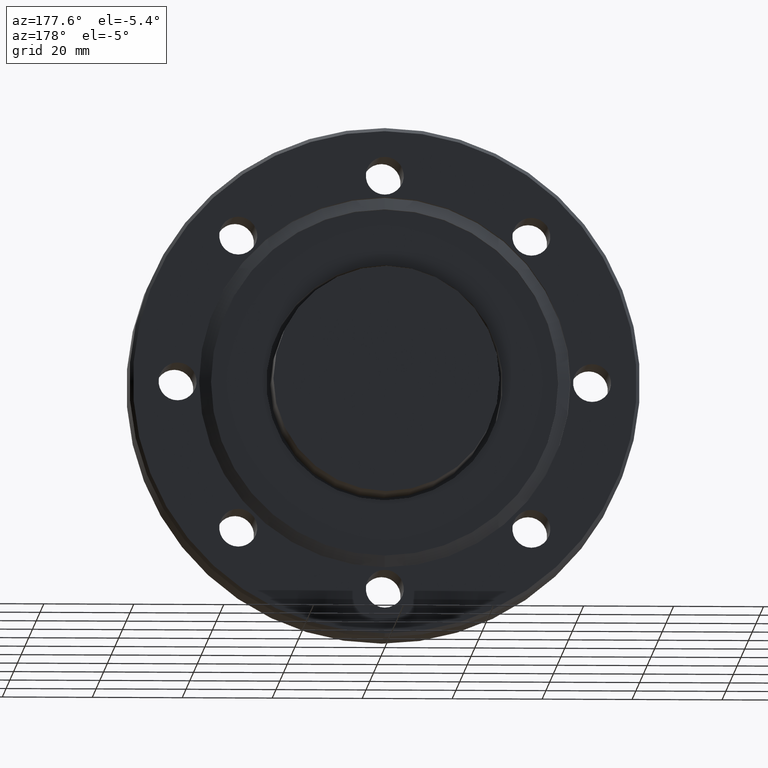
[diagram: clean part render]
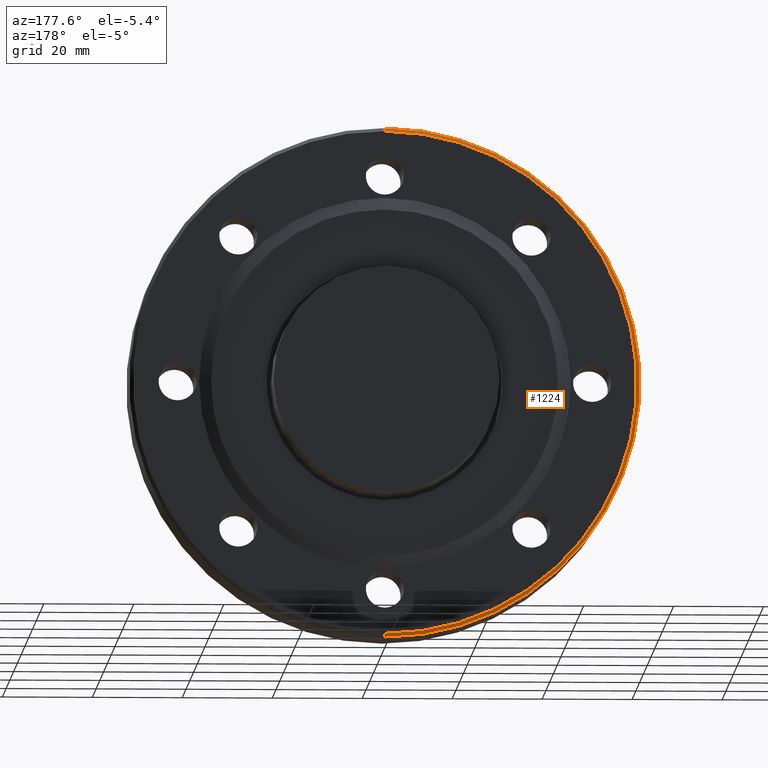
[diagram: same view with one face highlighted and labeled with its STEP entity id]
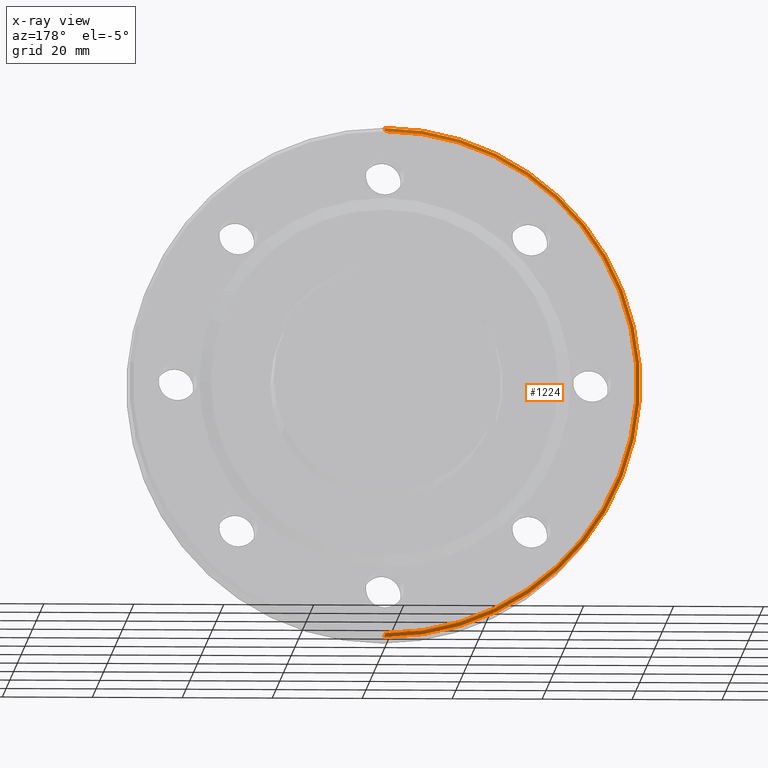
[diagram: x-ray of the same camera — body ghosted, the highlighted face saturated]
A machine part, auxiliary view. The second image highlights one B-rep face of the part: STEP entity #1224.
The next image is the same camera in x-ray: the body ghosted, the highlighted face saturated — about 0% of this face is hidden behind the body in this view.
In plain terms, the highlighted conical surface has half-angle 45 deg.
Its self-contained STEP definition (entity closure, byte-faithful):
#664 = VERTEX_POINT ( 'NONE', #6373 ) ;
#715 = FACE_OUTER_BOUND ( 'NONE', #5339, .T. ) ;
#1203 = ORIENTED_EDGE ( 'NONE', *, *, #4165, .T. ) ;
#1224 = ADVANCED_FACE ( 'NONE', ( #715 ), #3318, .T. ) ;
#1921 = CARTESIAN_POINT ( 'NONE',  ( 0.0000000000000000000, -0.03000000000000000583, 0.0000000000000000000 ) ) ;
#2059 = VECTOR ( 'NONE', #5939, 39.37007874015748143 ) ;
#3119 = CARTESIAN_POINT ( 'NONE',  ( 0.0000000000000000000, 0.0000000000000000000, 2.205000000000002292 ) ) ;
#3318 = CONICAL_SURFACE ( 'NONE', #8259, 2.205000000000002292, 0.7853981633974473908 ) ;
#3363 = CIRCLE ( 'NONE', #6835, 2.235000000000002096 ) ;
#3386 = EDGE_CURVE ( 'NONE', #6259, #5252, #5196, .T. ) ;
#3402 = CARTESIAN_POINT ( 'NONE',  ( 0.0000000000000000000, 0.0000000000000000000, 0.0000000000000000000 ) ) ;
#3405 = DIRECTION ( 'NONE',  ( 0.0000000000000000000, 0.0000000000000000000, 1.000000000000000000 ) ) ;
#3462 = EDGE_CURVE ( 'NONE', #5252, #4307, #3363, .T. ) ;
#3473 = DIRECTION ( 'NONE',  ( 0.0000000000000000000, -1.000000000000000000, 0.0000000000000000000 ) ) ;
#4045 = LINE ( 'NONE', #7439, #6531 ) ;
#4165 = EDGE_CURVE ( 'NONE', #6259, #664, #8085, .T. ) ;
#4307 = VERTEX_POINT ( 'NONE', #4990 ) ;
#4778 = DIRECTION ( 'NONE',  ( 0.0000000000000000000, -1.000000000000000000, 0.0000000000000000000 ) ) ;
#4990 = CARTESIAN_POINT ( 'NONE',  ( -2.737085596094334151E-16, -0.03000000000000000583, -2.234999999999999876 ) ) ;
#5040 = ORIENTED_EDGE ( 'NONE', *, *, #5971, .T. ) ;
#5196 = LINE ( 'NONE', #5264, #2059 ) ;
#5252 = VERTEX_POINT ( 'NONE', #5727 ) ;
#5264 = CARTESIAN_POINT ( 'NONE',  ( 0.0000000000000000000, 0.0000000000000000000, 2.205000000000002292 ) ) ;
#5339 = EDGE_LOOP ( 'NONE', ( #1203, #5040, #8686, #5413 ) ) ;
#5413 = ORIENTED_EDGE ( 'NONE', *, *, #3386, .F. ) ;
#5506 = DIRECTION ( 'NONE',  ( 0.0000000000000000000, 0.0000000000000000000, 1.000000000000000000 ) ) ;
#5727 = CARTESIAN_POINT ( 'NONE',  ( 0.0000000000000000000, -0.03000000000000000583, 2.235000000000002096 ) ) ;
#5939 = DIRECTION ( 'NONE',  ( 0.0000000000000000000, -0.7071067811865476838, 0.7071067811865473507 ) ) ;
#5971 = EDGE_CURVE ( 'NONE', #664, #4307, #4045, .T. ) ;
#6259 = VERTEX_POINT ( 'NONE', #3119 ) ;
#6373 = CARTESIAN_POINT ( 'NONE',  ( -2.718715894107124016E-16, 0.0000000000000000000, -2.204999999999999627 ) ) ;
#6531 = VECTOR ( 'NONE', #6793, 39.37007874015748143 ) ;
#6754 = DIRECTION ( 'NONE',  ( 0.0000000000000000000, -1.000000000000000000, 0.0000000000000000000 ) ) ;
#6793 = DIRECTION ( 'NONE',  ( -8.659560562354931626E-17, -0.7071067811865476838, -0.7071067811865473507 ) ) ;
#6835 = AXIS2_PLACEMENT_3D ( 'NONE', #1921, #6754, #3405 ) ;
#7372 = AXIS2_PLACEMENT_3D ( 'NONE', #3402, #4778, #5506 ) ;
#7439 = CARTESIAN_POINT ( 'NONE',  ( -2.700346192119916840E-16, 0.0000000000000000000, -2.205000000000002292 ) ) ;
#7641 = DIRECTION ( 'NONE',  ( 0.0000000000000000000, 0.0000000000000000000, 1.000000000000000000 ) ) ;
#8085 = CIRCLE ( 'NONE', #7372, 2.205000000000002292 ) ;
#8259 = AXIS2_PLACEMENT_3D ( 'NONE', #8945, #3473, #7641 ) ;
#8686 = ORIENTED_EDGE ( 'NONE', *, *, #3462, .F. ) ;
#8945 = CARTESIAN_POINT ( 'NONE',  ( 0.0000000000000000000, 0.0000000000000000000, 0.0000000000000000000 ) ) ;